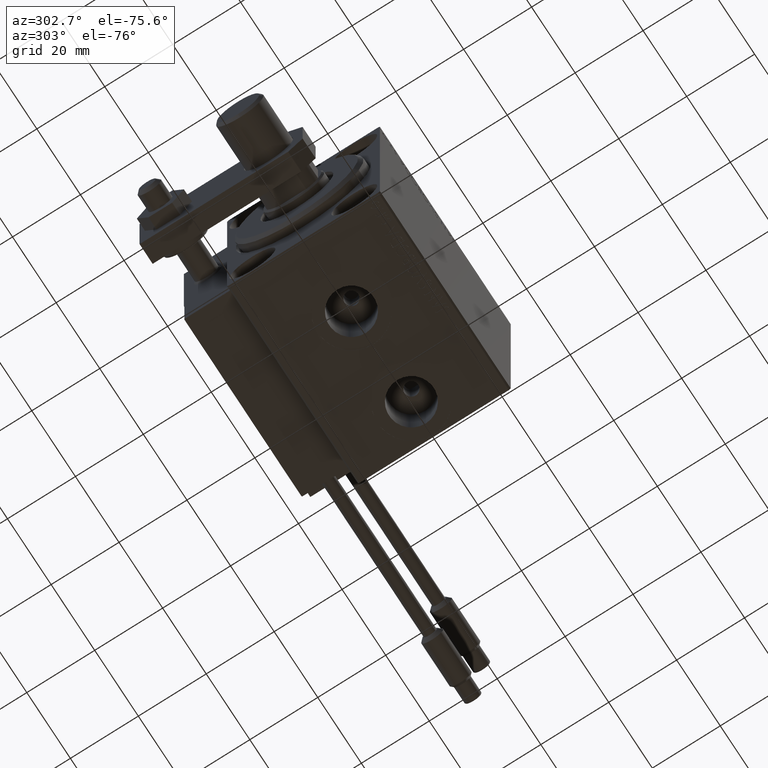
[diagram: clean part render]
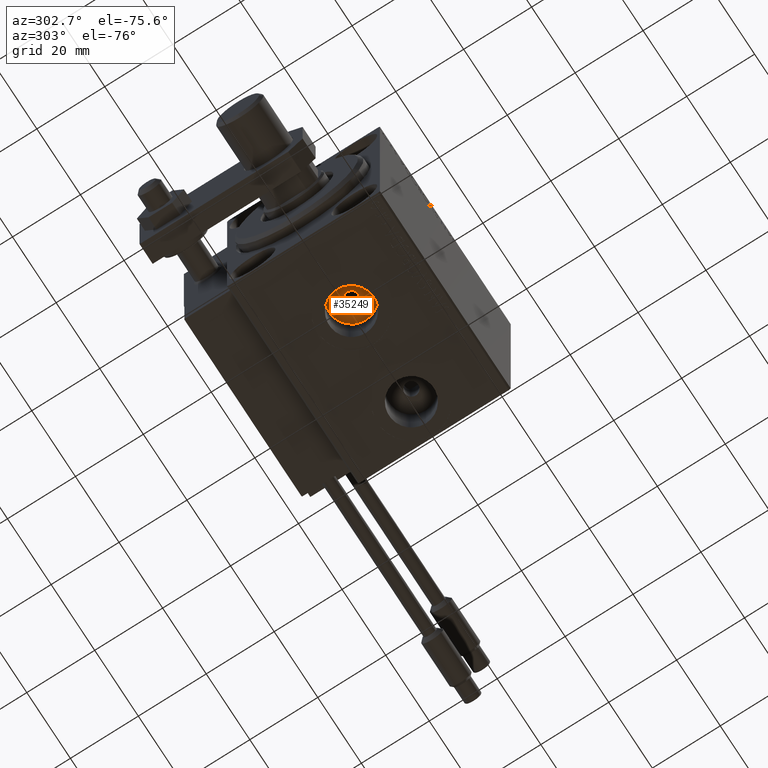
[diagram: same view with one face highlighted and labeled with its STEP entity id]
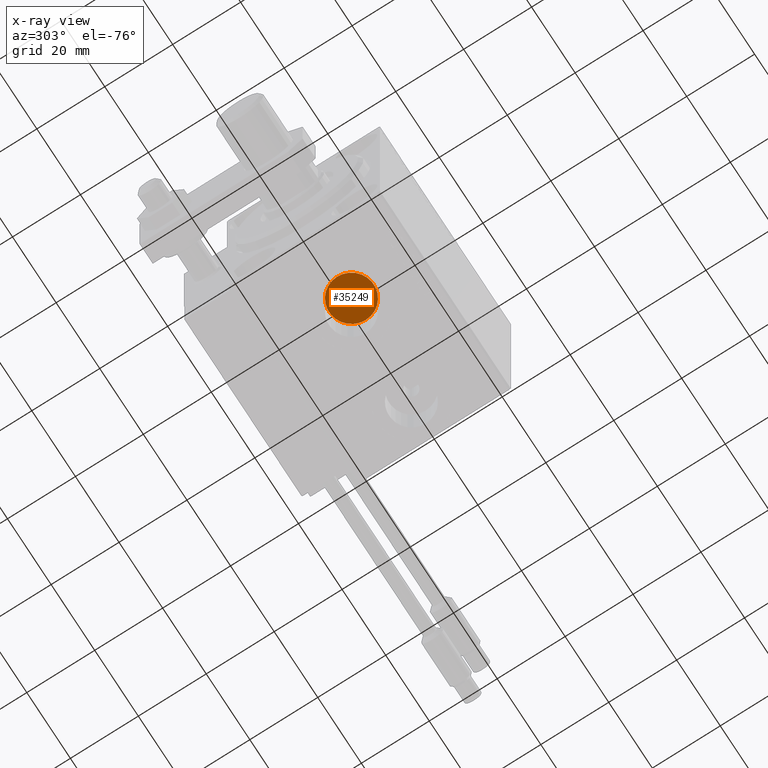
[diagram: x-ray of the same camera — body ghosted, the highlighted face saturated]
A machine part, auxiliary view. The second image highlights one B-rep face of the part: STEP entity #35249.
The next image is the same camera in x-ray: the body ghosted, the highlighted face saturated — about 0% of this face is hidden behind the body in this view.
In plain terms, the highlighted planar face has unit normal (0, 0, -1).
Its self-contained STEP definition (entity closure, byte-faithful):
#261 = DIRECTION ( 'NONE',  ( -1.000000000000000000, 0.000000000000000000, 0.000000000000000000 ) ) ;
#851 = DIRECTION ( 'NONE',  ( 0.000000000000000000, 0.000000000000000000, -1.000000000000000000 ) ) ;
#4404 = DIRECTION ( 'NONE',  ( 0.000000000000000000, 0.000000000000000000, -1.000000000000000000 ) ) ;
#5042 = EDGE_LOOP ( 'NONE', ( #48215, #14571 ) ) ;
#6209 = AXIS2_PLACEMENT_3D ( 'NONE', #47532, #40502, #261 ) ;
#7547 = VERTEX_POINT ( 'NONE', #42268 ) ;
#9207 = AXIS2_PLACEMENT_3D ( 'NONE', #21013, #851, #17381 ) ;
#10424 = PLANE ( 'NONE',  #28923 ) ;
#10535 = AXIS2_PLACEMENT_3D ( 'NONE', #19666, #4404, #31294 ) ;
#14308 = DIRECTION ( 'NONE',  ( -1.000000000000000000, 0.000000000000000000, -0.000000000000000000 ) ) ;
#14571 = ORIENTED_EDGE ( 'NONE', *, *, #49783, .F. ) ;
#16911 = FACE_BOUND ( 'NONE', #5042, .T. ) ;
#17381 = DIRECTION ( 'NONE',  ( -1.000000000000000000, 0.000000000000000000, 0.000000000000000000 ) ) ;
#17931 = FACE_OUTER_BOUND ( 'NONE', #24452, .T. ) ;
#18184 = CARTESIAN_POINT ( 'NONE',  ( 22.00000000000000000, -3.594347949397319039E-15, -19.50000000000000355 ) ) ;
#18290 = CARTESIAN_POINT ( 'NONE',  ( 24.00000000000000000, -3.349418589567848349E-15, -19.50000000000000355 ) ) ;
#19046 = CARTESIAN_POINT ( 'NONE',  ( 22.00000000000000000, -3.594347949397319039E-15, -19.50000000000000355 ) ) ;
#19666 = CARTESIAN_POINT ( 'NONE',  ( 22.00000000000000000, -3.594347949397319039E-15, -19.50000000000000355 ) ) ;
#21013 = CARTESIAN_POINT ( 'NONE',  ( 22.00000000000000000, -3.594347949397319039E-15, -19.50000000000000355 ) ) ;
#24452 = EDGE_LOOP ( 'NONE', ( #35086, #43065 ) ) ;
#25431 = DIRECTION ( 'NONE',  ( 0.000000000000000000, 0.000000000000000000, -1.000000000000000000 ) ) ;
#28923 = AXIS2_PLACEMENT_3D ( 'NONE', #18184, #25431, #14308 ) ;
#29410 = EDGE_CURVE ( 'NONE', #7547, #35692, #38610, .T. ) ;
#29620 = EDGE_CURVE ( 'NONE', #35935, #33008, #44398, .T. ) ;
#31294 = DIRECTION ( 'NONE',  ( -1.000000000000000000, 0.000000000000000000, 0.000000000000000000 ) ) ;
#33008 = VERTEX_POINT ( 'NONE', #18290 ) ;
#33137 = CIRCLE ( 'NONE', #9207, 6.580000000000002736 ) ;
#34302 = DIRECTION ( 'NONE',  ( 0.000000000000000000, 0.000000000000000000, -1.000000000000000000 ) ) ;
#35086 = ORIENTED_EDGE ( 'NONE', *, *, #29410, .T. ) ;
#35121 = CARTESIAN_POINT ( 'NONE',  ( 19.99999999999999645, -3.594347949397319039E-15, -19.50000000000000355 ) ) ;
#35249 = ADVANCED_FACE ( 'NONE', ( #16911, #17931 ), #10424, .T. ) ;
#35692 = VERTEX_POINT ( 'NONE', #45000 ) ;
#35935 = VERTEX_POINT ( 'NONE', #35121 ) ;
#37633 = EDGE_CURVE ( 'NONE', #35692, #7547, #33137, .T. ) ;
#38610 = CIRCLE ( 'NONE', #10535, 6.580000000000002736 ) ;
#40502 = DIRECTION ( 'NONE',  ( 0.000000000000000000, 0.000000000000000000, -1.000000000000000000 ) ) ;
#42268 = CARTESIAN_POINT ( 'NONE',  ( 15.41999999999999638, -3.594347949397319039E-15, -19.50000000000000355 ) ) ;
#42298 = DIRECTION ( 'NONE',  ( -1.000000000000000000, 0.000000000000000000, 0.000000000000000000 ) ) ;
#43065 = ORIENTED_EDGE ( 'NONE', *, *, #37633, .T. ) ;
#43362 = CIRCLE ( 'NONE', #6209, 2.000000000000001776 ) ;
#44398 = CIRCLE ( 'NONE', #48521, 2.000000000000001776 ) ;
#45000 = CARTESIAN_POINT ( 'NONE',  ( 28.58000000000000185, -2.788530355558360786E-15, -19.50000000000000355 ) ) ;
#47532 = CARTESIAN_POINT ( 'NONE',  ( 22.00000000000000000, -3.594347949397319039E-15, -19.50000000000000355 ) ) ;
#48215 = ORIENTED_EDGE ( 'NONE', *, *, #29620, .F. ) ;
#48521 = AXIS2_PLACEMENT_3D ( 'NONE', #19046, #34302, #42298 ) ;
#49783 = EDGE_CURVE ( 'NONE', #33008, #35935, #43362, .T. ) ;